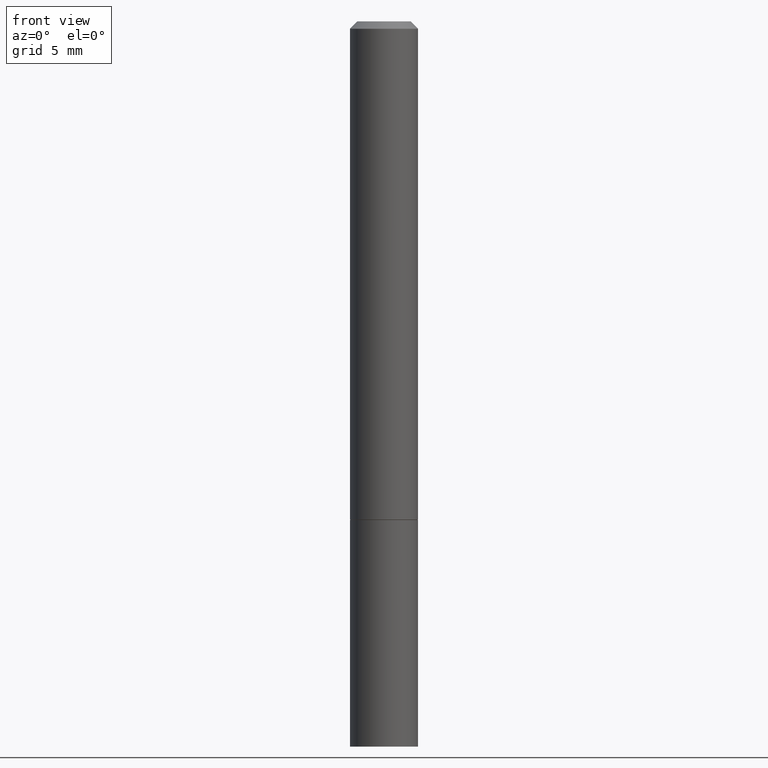
[diagram: clean part render]
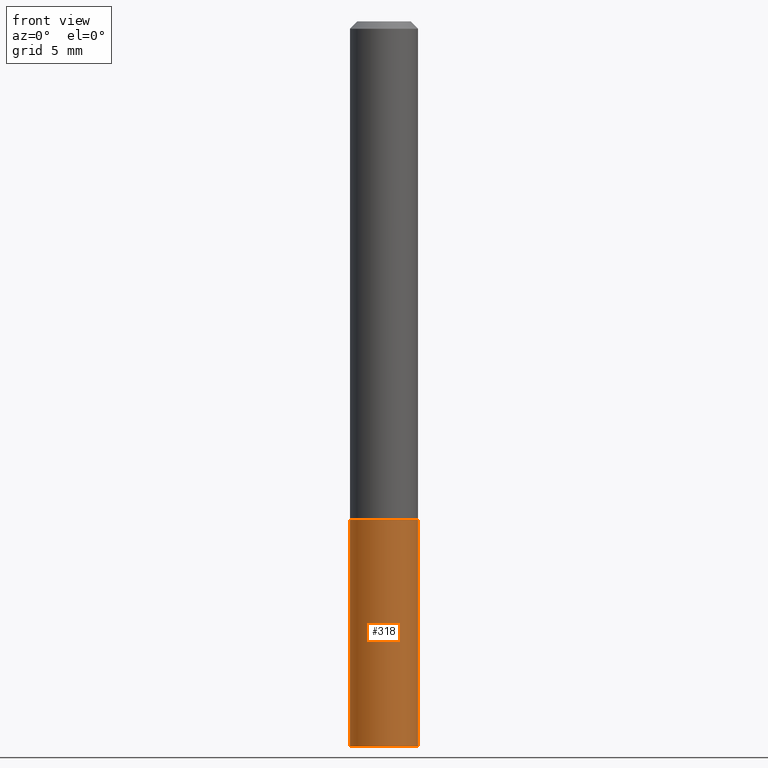
[diagram: same view with one face highlighted and labeled with its STEP entity id]
A machine part, front view. The second image highlights one B-rep face of the part: STEP entity #318.
In plain terms, the highlighted cylindrical surface (edge-blend (fillet) strip) has radius 2.3813 mm, axis along (-0, 0, 1).
Its self-contained STEP definition (entity closure, byte-faithful):
#15 = CIRCLE ( 'NONE', #232, 0.09375000000000001388 ) ;
#37 = EDGE_CURVE ( 'NONE', #390, #142, #15, .T. ) ;
#42 = CARTESIAN_POINT ( 'NONE',  ( -0.09375000000000001388, -5.225740944522714123E-15, -1.375000000000000000 ) ) ;
#44 = LINE ( 'NONE', #323, #184 ) ;
#63 = CARTESIAN_POINT ( 'NONE',  ( -0.09374999999999984734, -6.328309926653205239E-15, -2.000000000000000000 ) ) ;
#81 = AXIS2_PLACEMENT_3D ( 'NONE', #88, #361, #163 ) ;
#88 = CARTESIAN_POINT ( 'NONE',  ( 4.890937612370273194E-29, -6.982962677686291165E-15, -2.000000000000000000 ) ) ;
#93 = VECTOR ( 'NONE', #167, 39.37007874015748143 ) ;
#96 = CARTESIAN_POINT ( 'NONE',  ( 0.09375000000000001388, -6.546527510330875041E-16, 4.571415727308690506E-30 ) ) ;
#98 = EDGE_CURVE ( 'NONE', #276, #152, #355, .T. ) ;
#112 = ORIENTED_EDGE ( 'NONE', *, *, #98, .T. ) ;
#122 = CARTESIAN_POINT ( 'NONE',  ( 3.362519608504562260E-29, -4.800786840909324930E-15, -1.375000000000000000 ) ) ;
#130 = LINE ( 'NONE', #96, #93 ) ;
#142 = VERTEX_POINT ( 'NONE', #229 ) ;
#152 = VERTEX_POINT ( 'NONE', #364 ) ;
#155 = ORIENTED_EDGE ( 'NONE', *, *, #186, .T. ) ;
#163 = DIRECTION ( 'NONE',  ( 1.000000000000000000, -6.982962677686261189E-15, 0.000000000000000000 ) ) ;
#167 = DIRECTION ( 'NONE',  ( -2.445468806185136877E-29, 3.491481338843145188E-15, 1.000000000000000000 ) ) ;
#176 = FACE_OUTER_BOUND ( 'NONE', #268, .T. ) ;
#184 = VECTOR ( 'NONE', #370, 39.37007874015748143 ) ;
#186 = EDGE_CURVE ( 'NONE', #152, #142, #130, .T. ) ;
#202 = CYLINDRICAL_SURFACE ( 'NONE', #251, 0.09375000000000001388 ) ;
#229 = CARTESIAN_POINT ( 'NONE',  ( 0.09375000000000001388, -5.455439591942412434E-15, -1.375000000000000000 ) ) ;
#232 = AXIS2_PLACEMENT_3D ( 'NONE', #122, #304, #250 ) ;
#250 = DIRECTION ( 'NONE',  ( 1.000000000000000000, -6.982962677686261189E-15, 0.000000000000000000 ) ) ;
#251 = AXIS2_PLACEMENT_3D ( 'NONE', #261, #327, #320 ) ;
#261 = CARTESIAN_POINT ( 'NONE',  ( 0.000000000000000000, 0.000000000000000000, 0.000000000000000000 ) ) ;
#265 = ORIENTED_EDGE ( 'NONE', *, *, #338, .F. ) ;
#268 = EDGE_LOOP ( 'NONE', ( #265, #112, #155, #302 ) ) ;
#276 = VERTEX_POINT ( 'NONE', #63 ) ;
#302 = ORIENTED_EDGE ( 'NONE', *, *, #37, .F. ) ;
#304 = DIRECTION ( 'NONE',  ( -2.445468806185136597E-29, 3.491481338843145583E-15, 1.000000000000000000 ) ) ;
#318 = ADVANCED_FACE ( 'NONE', ( #176 ), #202, .T. ) ;
#320 = DIRECTION ( 'NONE',  ( 1.000000000000000000, -6.982962677686265922E-15, 4.876176775795935793E-29 ) ) ;
#323 = CARTESIAN_POINT ( 'NONE',  ( -0.09375000000000001388, 6.661338147750940229E-16, -4.611501647113973995E-30 ) ) ;
#327 = DIRECTION ( 'NONE',  ( -2.445468806185136597E-29, 3.491481338843145583E-15, 1.000000000000000000 ) ) ;
#338 = EDGE_CURVE ( 'NONE', #276, #390, #44, .T. ) ;
#355 = CIRCLE ( 'NONE', #81, 0.09375000000000001388 ) ;
#361 = DIRECTION ( 'NONE',  ( -2.445468806185136597E-29, 3.491481338843145583E-15, 1.000000000000000000 ) ) ;
#364 = CARTESIAN_POINT ( 'NONE',  ( 0.09374999999999984734, -7.626134364977371460E-15, -2.000000000000000000 ) ) ;
#370 = DIRECTION ( 'NONE',  ( -2.445468806185136877E-29, 3.491481338843145188E-15, 1.000000000000000000 ) ) ;
#390 = VERTEX_POINT ( 'NONE', #42 ) ;